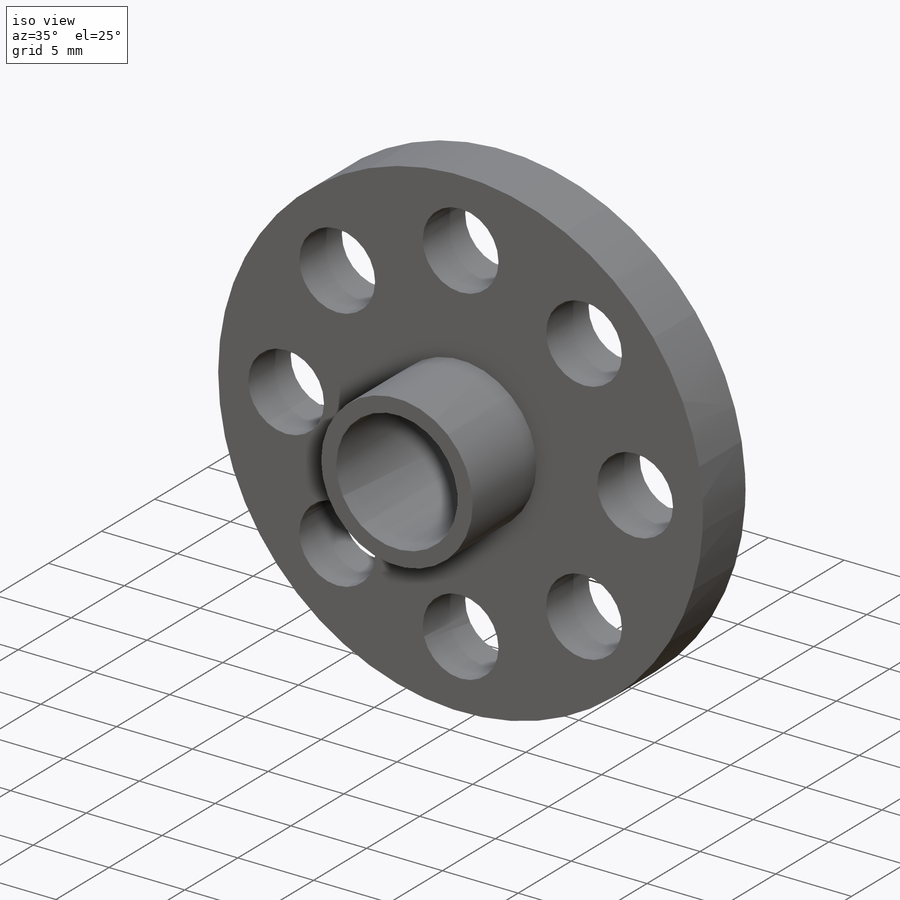
[diagram: iso view]
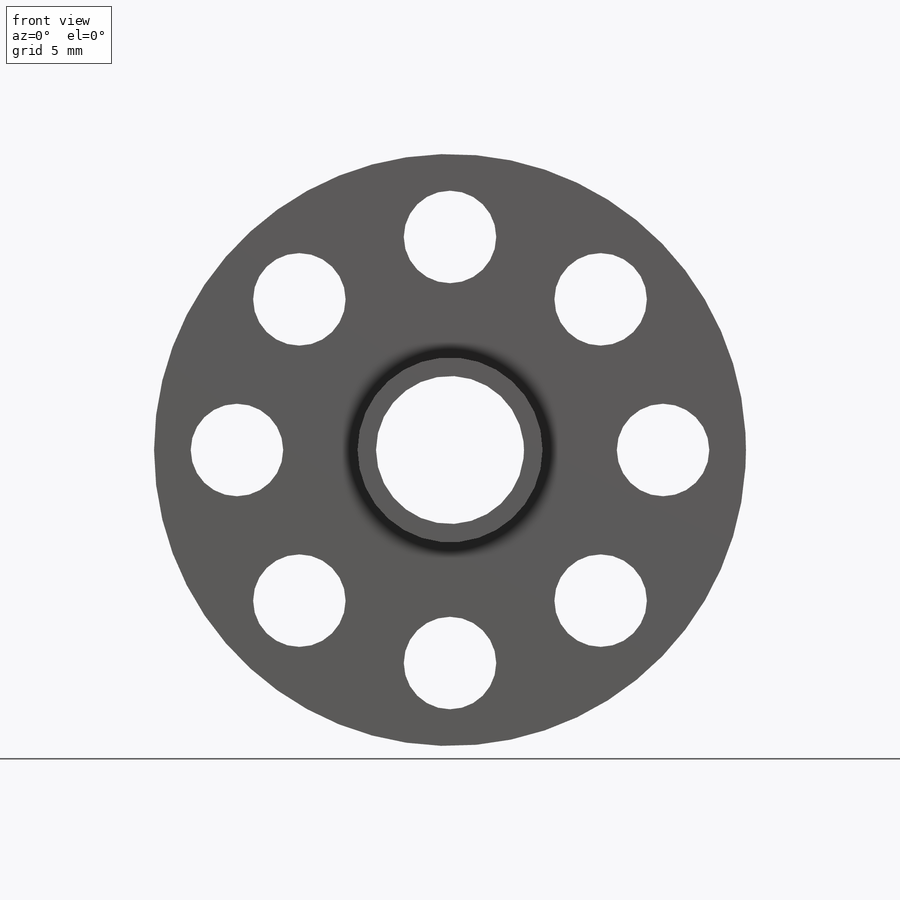
[diagram: front view]
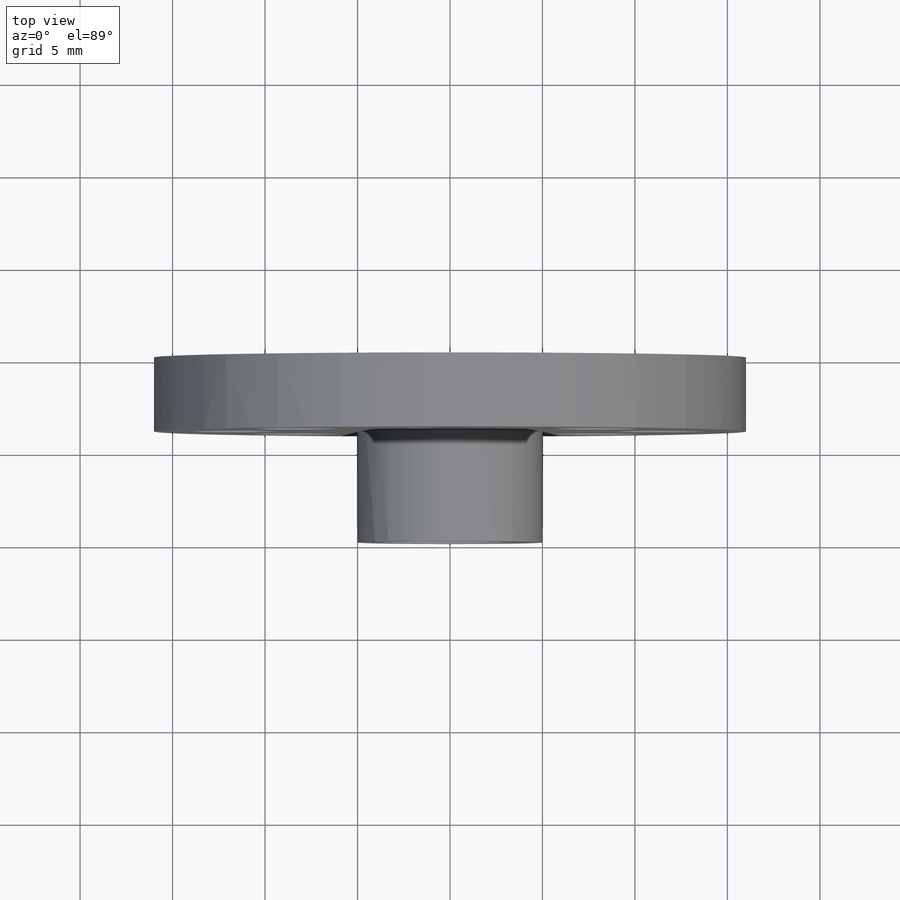
[diagram: top view]
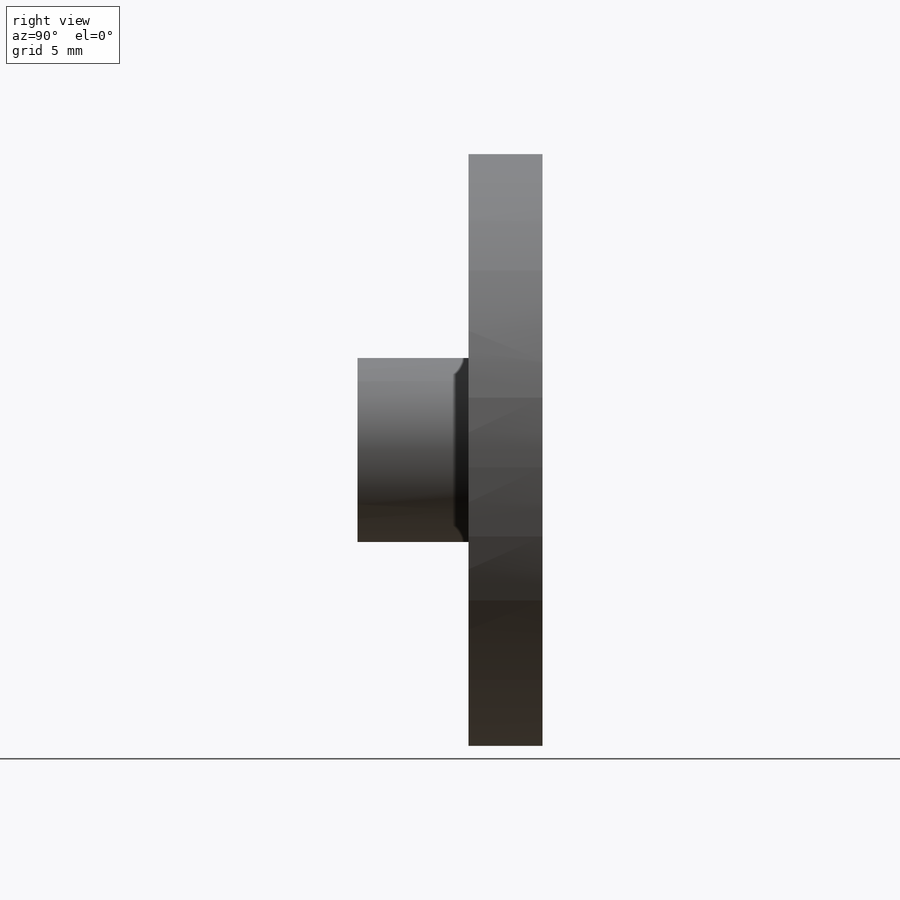
[diagram: right view]
SOLIDWORKS PART (.sldprt)
format: sldprt  version: not decoded by parser v0  size: 231,936 bytes
history: native  units: mm
features: plane x3, sketch x3, cut_extrude x2, material x1, extrude x1, pattern_circular x1 (+9 scaffold rows collapsed)
feature tree (20):
  scaffold x9  (default folders/planes/origin — collapsed)
  material  "材质 <未指定>"
  plane  "前视基准面"
  plane  "上视基准面"
  plane  "右视基准面"
  sketch  "草图1"  dims[D1=6.0mm]
  extrude  "凸台-拉伸2"  Depth=10mm
  sketch  "草图3"  dims[D1=~5.199082mm]
  cut_extrude  "切除-拉伸2"  Depth=6mm
  sketch  "草图4"  dims[D1=3.0mm]
  cut_extrude  "切除-拉伸3"  [1 undecoded]
  pattern_circular  "阵列(圆周)1"  Count=8 Angle=360deg
decode coverage: 6 of 7 modeling features carry decoded parameters
note: ~ marks probable driven/reference dimensions
note: 1 parameter value undecoded
note: suppression state not decoded; provenance and decode notes live in map.json
